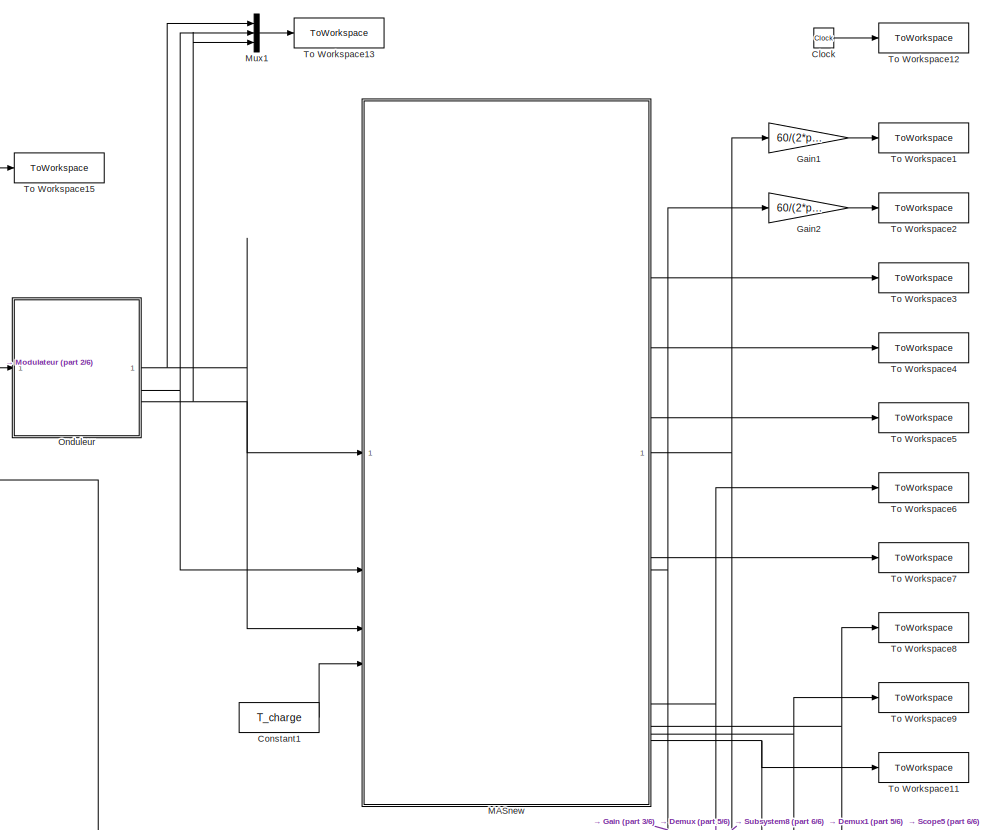
[diagram: root canvas - part 1/6, top right region]
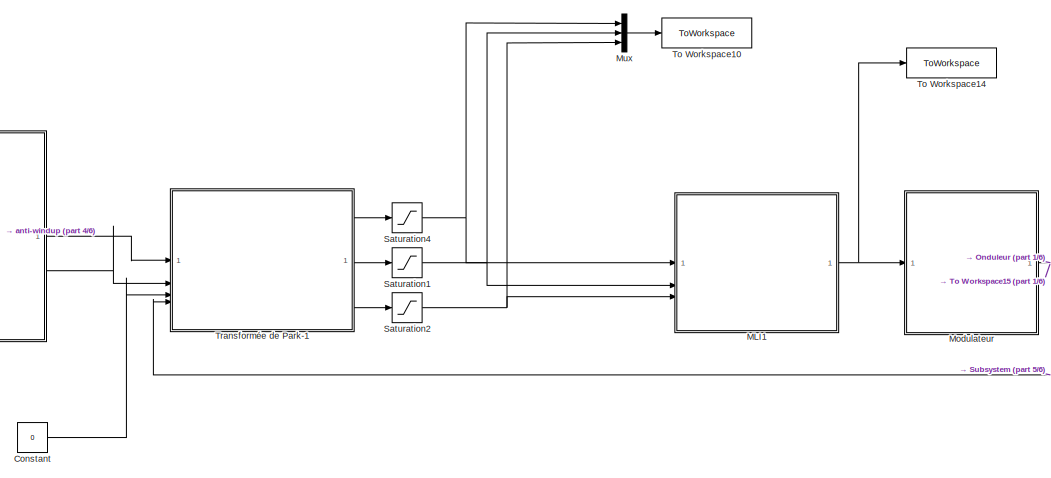
[diagram: root canvas - part 2/6, top center region]
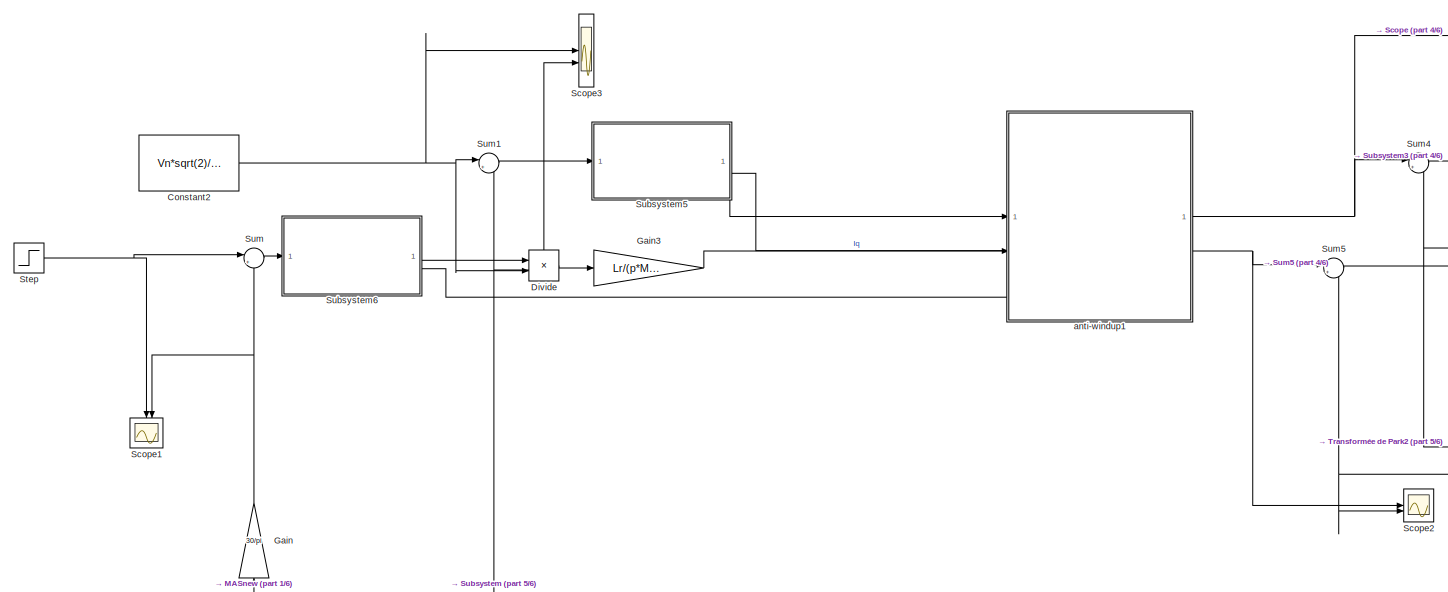
[diagram: root canvas - part 3/6, top left region]
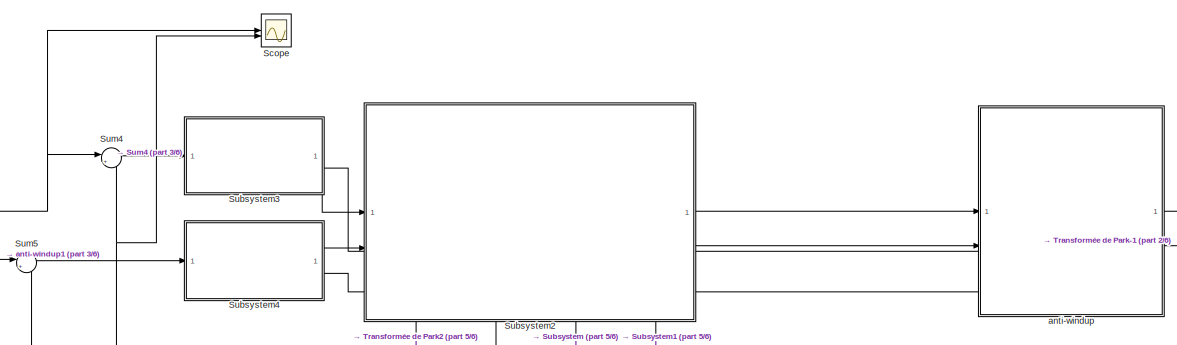
[diagram: root canvas - part 4/6, top center region]
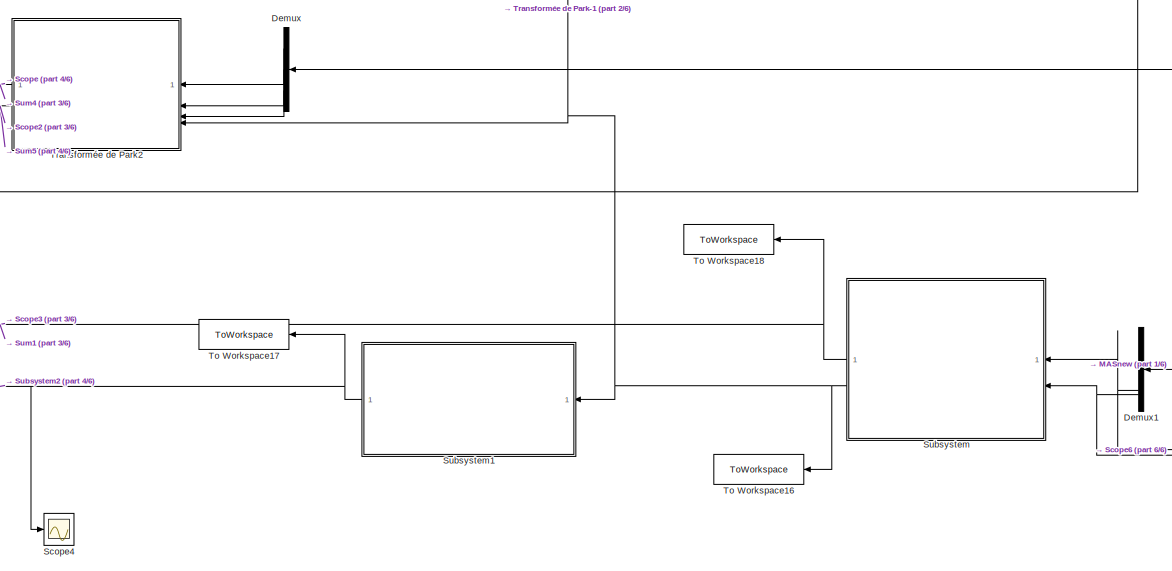
[diagram: root canvas - part 5/6, bottom right region]
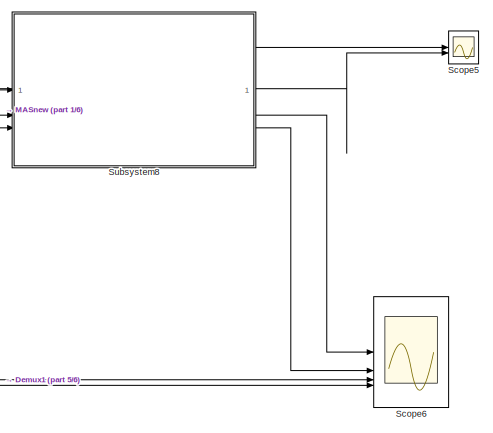
[diagram: root canvas - part 6/6, bottom right region]
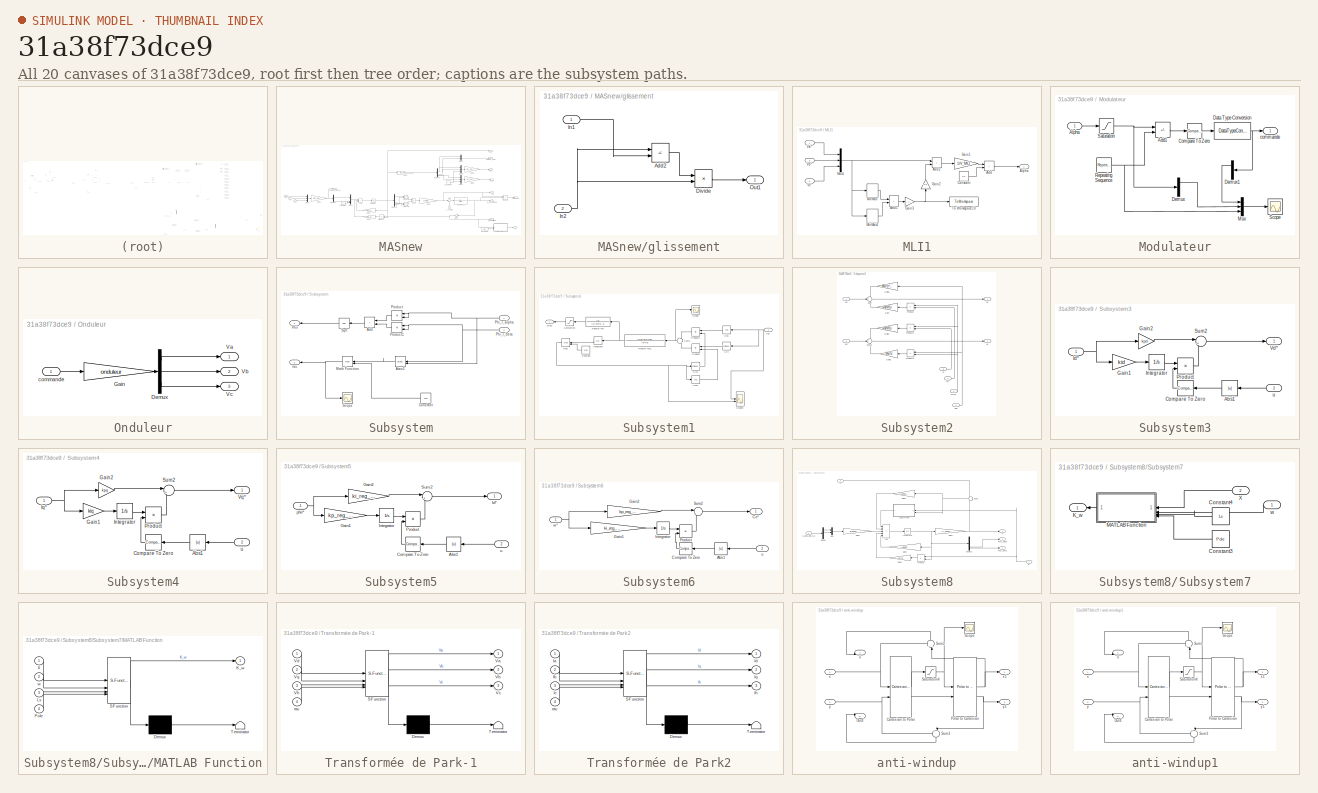
[diagram: thumbnail index - all 20 canvases of the model, root first then tree order]
MODEL slx_31a38f73dce9
KIND model
CONFIG AbsTol = auto
CONFIG EnableMultiTasking = off
CONFIG FixedStep = 1e-5
CONFIG MaxStep = auto
CONFIG MinStep = auto
CONFIG RelTol = 1e-5
CONFIG SampleTimeConstraint = Unconstrained
CONFIG SolverName = ode4
CONFIG StartTime = 0.0
CONFIG StopTime = 0.5
BLOCK [Clock] Clock
BLOCK [Constant] Constant
  Value = 0
BLOCK [Constant] Constant1
  Value = T_charge
BLOCK [Constant] Constant2
  Value = Vn*sqrt(2)/ws
BLOCK [Demux] Demux
  NameLocation = top
  Outputs = 3
BLOCK [Demux] Demux1
  NameLocation = top
BLOCK [Product] Divide
  Inputs = */
BLOCK [Gain] Gain
  Gain = 30/pi
  NameLocation = right
BLOCK [Gain] Gain1
  Gain = 60/(2*pi)
BLOCK [Gain] Gain2
  Gain = 60/(2*pi)
BLOCK [Gain] Gain3
  Gain = Lr/(p*Msr)
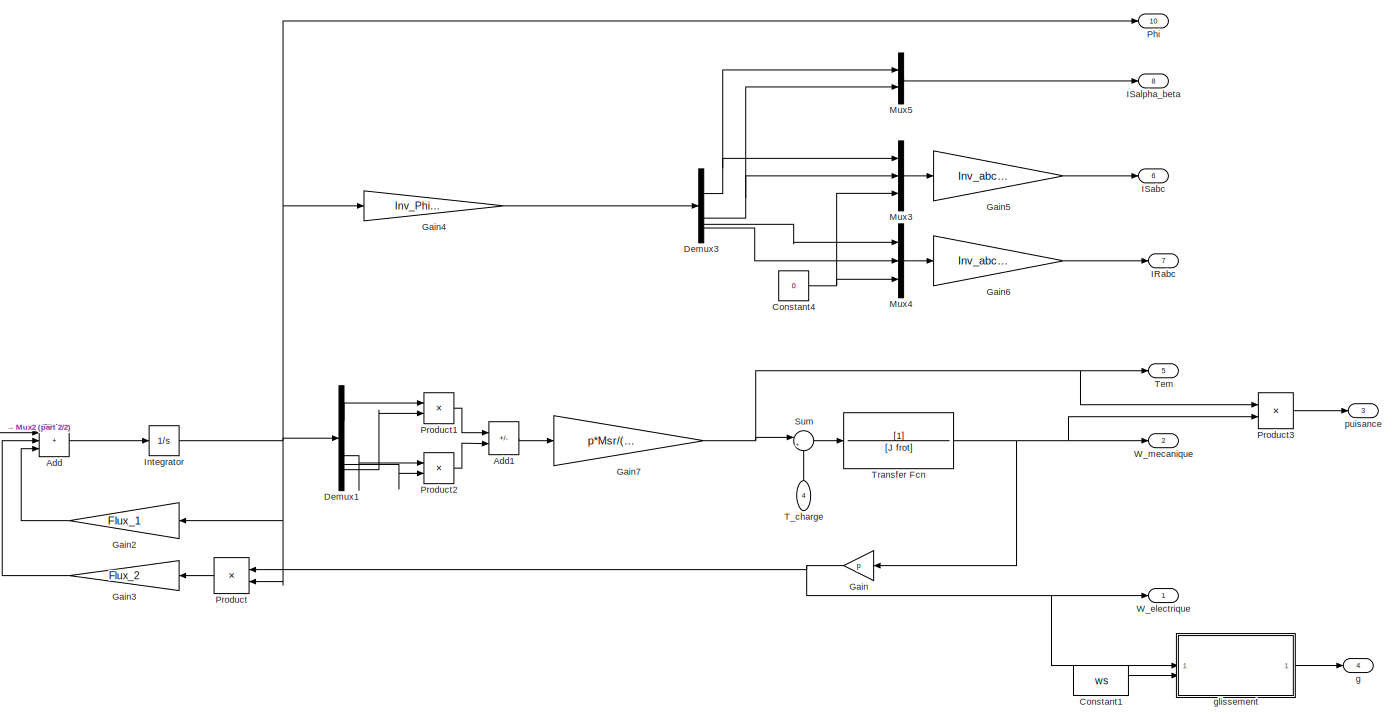
[diagram: MASnew - part 1/2, center side, full height]
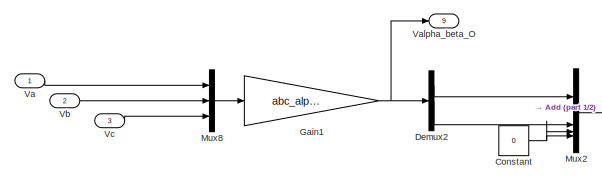
[diagram: MASnew - part 2/2, middle left region]
BLOCK [SubSystem] MASnew
BLOCK [Sum] MASnew/Add
  IconShape = rectangular
  Inputs = +++
BLOCK [Sum] MASnew/Add1
  IconShape = rectangular
  Inputs = +-
BLOCK [Constant] MASnew/Constant
  Value = 0
BLOCK [Constant] MASnew/Constant1
  Value = ws
BLOCK [Constant] MASnew/Constant4
  Value = 0
BLOCK [Demux] MASnew/Demux1
BLOCK [Demux] MASnew/Demux2
  Outputs = 3
BLOCK [Demux] MASnew/Demux3
BLOCK [Gain] MASnew/Gain
  Gain = p
  NameLocation = top
BLOCK [Gain] MASnew/Gain1
  Gain = abc_alpha_beta
  Multiplication = Matrix(K*u)
BLOCK [Gain] MASnew/Gain2
  Gain = Flux_1
  Multiplication = Matrix(K*u)
  NameLocation = top
BLOCK [Gain] MASnew/Gain3
  Gain = Flux_2
  Multiplication = Matrix(K*u)
  NameLocation = top
BLOCK [Gain] MASnew/Gain4
  Gain = Inv_Phi_Courant
  Multiplication = Matrix(K*u)
BLOCK [Gain] MASnew/Gain5
  Gain = Inv_abc_alpha_beta
  Multiplication = Matrix(K*u)
BLOCK [Gain] MASnew/Gain6
  Gain = Inv_abc_alpha_beta
  Multiplication = Matrix(K*u)
BLOCK [Gain] MASnew/Gain7
  Gain = p*Msr/(Msr^2 - Lr*Ls)
BLOCK [Outport] MASnew/IRabc
  Port = 7
BLOCK [Outport] MASnew/ISabc
  Port = 6
BLOCK [Outport] MASnew/ISalpha_beta
  Port = 8
BLOCK [Integrator] MASnew/Integrator
BLOCK [Mux] MASnew/Mux2
  DisplayOption = bar
BLOCK [Mux] MASnew/Mux3
  DisplayOption = bar
  Inputs = 3
BLOCK [Mux] MASnew/Mux4
  DisplayOption = bar
  Inputs = 3
BLOCK [Mux] MASnew/Mux5
  DisplayOption = bar
  Inputs = 2
BLOCK [Mux] MASnew/Mux8
  DisplayOption = bar
  Inputs = 3
BLOCK [Outport] MASnew/Phi
  Port = 10
BLOCK [Product] MASnew/Product
  NameLocation = top
BLOCK [Product] MASnew/Product1
BLOCK [Product] MASnew/Product2
BLOCK [Product] MASnew/Product3
BLOCK [Sum] MASnew/Sum
  Inputs = |+-
BLOCK [Inport] MASnew/T_charge
  NameLocation = right
  Port = 4
BLOCK [Outport] MASnew/Tem
  Port = 5
BLOCK [TransferFcn] MASnew/Transfer Fcn
  Denominator = [J frot]
BLOCK [Inport] MASnew/Va
BLOCK [Outport] MASnew/Valpha_beta_O
  Port = 9
BLOCK [Inport] MASnew/Vb
  Port = 2
BLOCK [Inport] MASnew/Vc
  Port = 3
BLOCK [Outport] MASnew/W_electrique
BLOCK [Outport] MASnew/W_mecanique
  Port = 2
BLOCK [Outport] MASnew/g
  Port = 4
BLOCK [SubSystem] MASnew/glissement
BLOCK [Sum] MASnew/glissement/Add2
  IconShape = rectangular
  Inputs = +-
BLOCK [Product] MASnew/glissement/Divide
  Inputs = */
BLOCK [Inport] MASnew/glissement/In1
BLOCK [Inport] MASnew/glissement/In2
  Port = 2
BLOCK [Outport] MASnew/glissement/Out1
BLOCK [Outport] MASnew/puisance
  Port = 3
BLOCK [SubSystem] MLI1
BLOCK [Sum] MLI1/Add
  IconShape = rectangular
BLOCK [Sum] MLI1/Add1
  IconShape = rectangular
BLOCK [Sum] MLI1/Add2
  IconShape = rectangular
BLOCK [Outport] MLI1/Alpha
BLOCK [Constant] MLI1/Constant
  Value = 1/2
BLOCK [Gain] MLI1/Gain1
  Gain = 1/V_MLI
BLOCK [Gain] MLI1/Gain2
  Gain = 1/2
  NameLocation = right
BLOCK [Gain] MLI1/Gain3
  Gain = -1
BLOCK [MinMax] MLI1/MinMax
BLOCK [MinMax] MLI1/MinMax1
  Function = max
BLOCK [Mux] MLI1/Mux1
  DisplayOption = bar
  Inputs = 3
BLOCK [ToWorkspace] MLI1/To Workspace10
  FixptAsFi = on
  MaxDataPoints = inf
  SampleTime = -1
  SaveFormat = Timeseries
  VariableName = consigne_triangle_MLI
BLOCK [Inport] MLI1/Va*
BLOCK [Inport] MLI1/Vb*
  Port = 2
BLOCK [Inport] MLI1/Vc*
  Port = 3
BLOCK [SubSystem] Modulateur
BLOCK [Sum] Modulateur/Add1
  IconShape = rectangular
  Inputs = +-
BLOCK [Inport] Modulateur/Alpha
BLOCK [Reference] Modulateur/Compare To Zero  REF=hdlsllib/Logic and Bit
Operations/Compare
To Zero
  SourceBlock = hdlsllib/Logic and Bit\nOperations/Compare\nTo Zero
  SourceType = Compare To Zero
BLOCK [DataTypeConversion] Modulateur/Data Type Conversion
  RndMeth = Floor
  SaturateOnIntegerOverflow = off
BLOCK [Demux] Modulateur/Demux
  Outputs = 3
BLOCK [Demux] Modulateur/Demux1
  NameLocation = top
  Outputs = 3
BLOCK [Mux] Modulateur/Mux
  DisplayOption = bar
  Inputs = 3
BLOCK [Reference] Modulateur/Repeating Sequence  REF=simulink/Sources/Repeating
Sequence
  SourceBlock = simulink/Sources/Repeating\nSequence
  SourceType = Repeating table
BLOCK [Saturate] Modulateur/Saturation
  LowerLimit = 0
  UpperLimit = 1
BLOCK [Scope] Modulateur/Scope
  Floating = off
  NumInputPorts = 1
  ScopeSpecificationString = Simulink.scopes.TimeScopeBlockCfg('CurrentConfiguration', extmgr.ConfigurationSet(extmgr.Configuration('Core','General UI',true),extmgr.Configuration('Core','Source UI',true),extmgr.Configuration('Sources','WiredSimulink',true,'DataLoggingVariableName','ScopeData1'),extmgr.Configuration('Visuals','Time Domain',true,'SerializedDisplays',{struct('MinYLimReal','-0.125','MaxYLimReal','1.125','YLabelRe...<+1432ch>
BLOCK [Outport] Modulateur/commande
BLOCK [Mux] Mux
  DisplayOption = bar
  Inputs = 3
BLOCK [Mux] Mux1
  DisplayOption = bar
  Inputs = 3
BLOCK [SubSystem] Onduleur
BLOCK [Demux] Onduleur/Demux
  Outputs = 3
BLOCK [Gain] Onduleur/Gain
  Gain = onduleur
  Multiplication = Matrix(K*u)
BLOCK [Outport] Onduleur/Va
BLOCK [Outport] Onduleur/Vb
  Port = 2
BLOCK [Outport] Onduleur/Vc
  Port = 3
BLOCK [Inport] Onduleur/commande
BLOCK [Saturate] Saturation1
  LowerLimit = -Vn*sqrt(2)
  UpperLimit = Vn*sqrt(2)
BLOCK [Saturate] Saturation2
  LowerLimit = -Vn*sqrt(2)
  UpperLimit = Vn*sqrt(2)
BLOCK [Saturate] Saturation4
  LowerLimit = -Vn*sqrt(2)
  UpperLimit = Vn*sqrt(2)
BLOCK [Scope] Scope
  Floating = off
  NumInputPorts = 2
  ScopeSpecificationString = Simulink.scopes.TimeScopeBlockCfg('CurrentConfiguration', extmgr.ConfigurationSet(extmgr.Configuration('Core','General UI',true),extmgr.Configuration('Core','Source UI',true),extmgr.Configuration('Sources','WiredSimulink',true,'DataLoggingVariableName','ScopeData1'),extmgr.Configuration('Visuals','Time Domain',true,'SerializedDisplays',{struct('MinYLimReal','-20.92303','MaxYLimReal','22.30725','YL...<+1590ch>
BLOCK [Scope] Scope1
  Floating = off
  NameLocation = left
  NumInputPorts = 2
  ScopeSpecificationString = Simulink.scopes.TimeScopeBlockCfg('CurrentConfiguration', extmgr.ConfigurationSet(extmgr.Configuration('Core','General UI',true),extmgr.Configuration('Core','Source UI',true),extmgr.Configuration('Sources','WiredSimulink',true,'DataLoggingVariableName','ScopeData4'),extmgr.Configuration('Visuals','Time Domain',true,'SerializedDisplays',{struct('MinYLimReal','-76.00159','MaxYLimReal','684.0143','YL...<+1563ch>
BLOCK [Scope] Scope2
  Floating = off
  NumInputPorts = 2
  ScopeSpecificationString = Simulink.scopes.TimeScopeBlockCfg('CurrentConfiguration', extmgr.ConfigurationSet(extmgr.Configuration('Core','General UI',true),extmgr.Configuration('Core','Source UI',true),extmgr.Configuration('Sources','WiredSimulink',true,'DataLoggingVariableName','ScopeData2'),extmgr.Configuration('Visuals','Time Domain',true,'SerializedDisplays',{struct('MinYLimReal','-1.44073','MaxYLimReal','12.96654','YLa...<+1588ch>
BLOCK [Scope] Scope3
  Floating = off
  NumInputPorts = 2
  ScopeSpecificationString = Simulink.scopes.TimeScopeBlockCfg('CurrentConfiguration', extmgr.ConfigurationSet(extmgr.Configuration('Core','General UI',true,'FigureColor',[1 1 1]),extmgr.Configuration('Core','Source UI',true),extmgr.Configuration('Sources','WiredSimulink',true,'DataLoggingVariableName','ScopeData1'),extmgr.Configuration('Visuals','Time Domain',true,'SerializedDisplays',{struct('MinYLimReal','-0.12391','MaxYLi...<+1699ch>
BLOCK [Scope] Scope4
  Floating = off
  NumInputPorts = 1
  ScopeSpecificationString = Simulink.scopes.TimeScopeBlockCfg('CurrentConfiguration', extmgr.ConfigurationSet(extmgr.Configuration('Core','General UI',true),extmgr.Configuration('Core','Source UI',true),extmgr.Configuration('Sources','WiredSimulink',true,'DataLoggingVariableName','ScopeData3'),extmgr.Configuration('Visuals','Time Domain',true,'SerializedDisplays',{struct('MinYLimReal','-1.00000','MaxYLimReal','1.00000','YLab...<+1396ch>
BLOCK [Scope] Scope5
  Floating = off
  NumInputPorts = 2
  ScopeSpecificationString = Simulink.scopes.TimeScopeBlockCfg('CurrentConfiguration', extmgr.ConfigurationSet(extmgr.Configuration('Core','General UI',true),extmgr.Configuration('Core','Source UI',true),extmgr.Configuration('Sources','WiredSimulink',true,'DataLoggingVariableName','ScopeData1'),extmgr.Configuration('Visuals','Time Domain',true,'SerializedDisplays',{struct('MinYLimReal','-1.68559','MaxYLimReal','15.17035','YLa...<+1577ch>
BLOCK [Scope] Scope6
  Floating = off
  NumInputPorts = 4
  ScopeSpecificationString = Simulink.scopes.TimeScopeBlockCfg('CurrentConfiguration', extmgr.ConfigurationSet(extmgr.Configuration('Core','General UI',true),extmgr.Configuration('Core','Source UI',true),extmgr.Configuration('Sources','WiredSimulink',true,'DataLoggingVariableName','ScopeData1'),extmgr.Configuration('Visuals','Time Domain',true,'SerializedDisplays',{struct('MinYLimReal','-1.23883','MaxYLimReal','1.23885','YLab...<+1565ch>
BLOCK [Step] Step
  After = 600
  SampleTime = 0
  Time = 0.1
BLOCK [SubSystem] Subsystem
  NameLocation = top
BLOCK [Sum] Subsystem/Add
  IconShape = rectangular
  NameLocation = top
BLOCK [Trigonometry] Subsystem/Atan2
  NameLocation = top
  Operator = atan2
BLOCK [Constant] Subsystem/Constant
  NameLocation = top
  Value = 2*pi
BLOCK [Math] Subsystem/Math Function
  NameLocation = top
  Operator = mod
BLOCK [Inport] Subsystem/Phi_r_alpha
BLOCK [Inport] Subsystem/Phi_r_beta
  Port = 2
BLOCK [Outport] Subsystem/Phir
  NameLocation = top
BLOCK [Product] Subsystem/Product
  NameLocation = top
BLOCK [Product] Subsystem/Product1
  NameLocation = top
BLOCK [Scope] Subsystem/Scope
  Floating = off
  NumInputPorts = 1
  ScopeSpecificationString = Simulink.scopes.TimeScopeBlockCfg('CurrentConfiguration', extmgr.ConfigurationSet(extmgr.Configuration('Core','General UI',true),extmgr.Configuration('Core','Source UI',true),extmgr.Configuration('Sources','WiredSimulink',true,'DataLoggingVariableName','ScopeData1'),extmgr.Configuration('Visuals','Time Domain',true,'SerializedDisplays',{struct('MinYLimReal','-0.78539','MaxYLimReal','7.06855','YLab...<+1399ch>
BLOCK [Sqrt] Subsystem/Sqrt
  NameLocation = top
BLOCK [Outport] Subsystem/rau
  NameLocation = top
  Port = 2
BLOCK [SubSystem] Subsystem1
  NameLocation = top
BLOCK [Constant] Subsystem1/Constant
  NameLocation = top
  Value = 2*pi
BLOCK [Trigonometry] Subsystem1/Cos
  NameLocation = top
  Operator = cos
BLOCK [Trigonometry] Subsystem1/Cos1
  Operator = cos
BLOCK [Integrator] Subsystem1/Integrator
  NameLocation = top
BLOCK [Math] Subsystem1/Mod
  NameLocation = top
  Operator = mod
BLOCK [Product] Subsystem1/Product
  NameLocation = top
BLOCK [Product] Subsystem1/Product1
  NameLocation = top
BLOCK [Saturate] Subsystem1/Saturation
  LowerLimit = -2*ws
  NameLocation = top
  UpperLimit = 2*ws
BLOCK [Scope] Subsystem1/Scope
  Floating = off
  NumInputPorts = 1
  ScopeSpecificationString = Simulink.scopes.TimeScopeBlockCfg('CurrentConfiguration', extmgr.ConfigurationSet(extmgr.Configuration('Core','General UI',true),extmgr.Configuration('Core','Source UI',true),extmgr.Configuration('Sources','WiredSimulink',true,'DataLoggingVariableName','ScopeData3'),extmgr.Configuration('Visuals','Time Domain',true,'SerializedDisplays',{struct('MinYLimReal','-1.18401','MaxYLimReal','0.65612','YLab...<+1411ch>
BLOCK [Scope] Subsystem1/Scope1
  Floating = off
  NumInputPorts = 2
  ScopeSpecificationString = Simulink.scopes.TimeScopeBlockCfg('CurrentConfiguration', extmgr.ConfigurationSet(extmgr.Configuration('Core','General UI',true),extmgr.Configuration('Core','Source UI',true),extmgr.Configuration('Sources','WiredSimulink',true,'DataLoggingVariableName','ScopeData2'),extmgr.Configuration('Visuals','Time Domain',true,'SerializedDisplays',{struct('MinYLimReal','-1.00000','MaxYLimReal','1.00000','YLab...<+1438ch>
BLOCK [Trigonometry] Subsystem1/Sin
  NameLocation = top
BLOCK [Trigonometry] Subsystem1/Sin1
BLOCK [Sum] Subsystem1/Sum1
  Inputs = -|+
  NameLocation = top
BLOCK [TransferFcn] Subsystem1/Transfer Fcn
  Denominator = [1/(3*ws) 1]
  NameLocation = top
BLOCK [TransferFcn] Subsystem1/Transfer Fcn1
  Denominator = [Tin 0]
  NameLocation = top
  Numerator = [Kpi*Tin Kpi]
BLOCK [Outport] Subsystem1/Wrau
  NameLocation = top
BLOCK [Inport] Subsystem1/rau
BLOCK [SubSystem] Subsystem2
  PortSchema = {"entries":[{"content":{"sides":[{"content":{"connectorIds":["In1","In2"]},"type":"ConnectorPlacement.EquallySpacedRectSide","uuid":"374a3029-9c19-44eb-9b98-de55e62c7022"},{"content":{"connectorIds":["Out1","Out2"],"side":"RIGHT"},"type":"ConnectorPlacement.EquallySpacedRectSide","uuid":"b066ba17-ce68-41f6-a300-7d3bc4dc3f92"},{"content":{"side":"TOP"},"type":"ConnectorPlacement.EquallySpacedRectSi...<+402ch>
BLOCK [Gain] Subsystem2/Gain
  Gain = sigma*Ls
  NameLocation = top
BLOCK [Gain] Subsystem2/Gain1
  Gain = sigma*Ls
  NameLocation = top
BLOCK [Gain] Subsystem2/Gain2
  Gain = Msr/Lr
  NameLocation = top
BLOCK [Gain] Subsystem2/Gain5
  Gain = Msr/Lr^2*Rr
  NameLocation = top
BLOCK [Inport] Subsystem2/Id
  Port = 3
BLOCK [Inport] Subsystem2/Iq
  Port = 4
BLOCK [Inport] Subsystem2/Phir
  Port = 5
BLOCK [Product] Subsystem2/Product
  NameLocation = top
BLOCK [Product] Subsystem2/Product1
  NameLocation = top
BLOCK [Product] Subsystem2/Product2
  NameLocation = top
BLOCK [Sum] Subsystem2/Sum
  Inputs = +++
BLOCK [Sum] Subsystem2/Sum2
  Inputs = -+-
BLOCK [Outport] Subsystem2/Vd
BLOCK [Inport] Subsystem2/Vd*
BLOCK [Outport] Subsystem2/Vq
  Port = 2
BLOCK [Inport] Subsystem2/Vq*
  Port = 2
BLOCK [Inport] Subsystem2/Wrau
  NameLocation = top
  Port = 6
BLOCK [SubSystem] Subsystem3
  PortSchema = {"entries":[{"content":{"sides":[{"content":{"connectorIds":["In1"]},"type":"ConnectorPlacement.EquallySpacedRectSide","uuid":"e479fa30-fafe-4b33-9f29-bcdfd025492c"},{"content":{"connectorIds":["Out1"],"side":"RIGHT"},"type":"ConnectorPlacement.EquallySpacedRectSide","uuid":"004bb801-1125-495b-9383-1b89d3712869"},{"content":{"connectorIds":["In2"],"side":"TOP"},"type":"ConnectorPlacement.EquallySp...<+245ch>
BLOCK [Abs] Subsystem3/Abs1
  NameLocation = top
  SaturateOnIntegerOverflow = off
BLOCK [Reference] Subsystem3/Compare To Zero  REF=hdlsllib/Logic and Bit
Operations/Compare
To Zero
  NameLocation = top
  SourceBlock = hdlsllib/Logic and Bit\nOperations/Compare\nTo Zero
  SourceType = Compare To Zero
BLOCK [Gain] Subsystem3/Gain1
  Gain = kid
BLOCK [Gain] Subsystem3/Gain2
  Gain = kpd
BLOCK [Inport] Subsystem3/Id*
BLOCK [Integrator] Subsystem3/Integrator
BLOCK [Product] Subsystem3/Product
BLOCK [Sum] Subsystem3/Sum2
  Inputs = |++
BLOCK [Outport] Subsystem3/Vd*
BLOCK [Inport] Subsystem3/u
  NameLocation = top
  Port = 2
BLOCK [SubSystem] Subsystem4
  PortSchema = {"entries":[{"content":{"sides":[{"content":{"connectorIds":["In1"]},"type":"ConnectorPlacement.EquallySpacedRectSide","uuid":"b47c6917-9341-4daa-88c1-000b41eb9d38"},{"content":{"connectorIds":["Out1"],"side":"RIGHT"},"type":"ConnectorPlacement.EquallySpacedRectSide","uuid":"db977880-8c33-40fc-933d-e73e745919fc"},{"content":{"side":"TOP"},"type":"ConnectorPlacement.EquallySpacedRectSide","uuid":"c...<+371ch>
BLOCK [Abs] Subsystem4/Abs1
  NameLocation = top
  SaturateOnIntegerOverflow = off
BLOCK [Reference] Subsystem4/Compare To Zero  REF=hdlsllib/Logic and Bit
Operations/Compare
To Zero
  NameLocation = top
  SourceBlock = hdlsllib/Logic and Bit\nOperations/Compare\nTo Zero
  SourceType = Compare To Zero
BLOCK [Gain] Subsystem4/Gain1
  Gain = kiq
BLOCK [Gain] Subsystem4/Gain2
  Gain = kpq
BLOCK [Integrator] Subsystem4/Integrator
BLOCK [Inport] Subsystem4/Iq*
BLOCK [Product] Subsystem4/Product
BLOCK [Sum] Subsystem4/Sum2
  Inputs = |++
BLOCK [Outport] Subsystem4/Vq*
BLOCK [Inport] Subsystem4/u
  NameLocation = top
  Port = 2
BLOCK [SubSystem] Subsystem5
  PortSchema = {"entries":[{"content":{"sides":[{"content":{"connectorIds":["In1"]},"type":"ConnectorPlacement.EquallySpacedRectSide","uuid":"b47c6917-9341-4daa-88c1-000b41eb9d38"},{"content":{"connectorIds":["Out1"],"side":"RIGHT"},"type":"ConnectorPlacement.EquallySpacedRectSide","uuid":"db977880-8c33-40fc-933d-e73e745919fc"},{"content":{"connectorIds":["In2"],"side":"TOP"},"type":"ConnectorPlacement.EquallySp...<+245ch>
BLOCK [Abs] Subsystem5/Abs1
  NameLocation = top
  SaturateOnIntegerOverflow = off
BLOCK [Reference] Subsystem5/Compare To Zero  REF=hdlsllib/Logic and Bit
Operations/Compare
To Zero
  NameLocation = top
  SourceBlock = hdlsllib/Logic and Bit\nOperations/Compare\nTo Zero
  SourceType = Compare To Zero
BLOCK [Gain] Subsystem5/Gain1
  Gain = kp_reg_flux
BLOCK [Gain] Subsystem5/Gain2
  Gain = ki_reg_flux
BLOCK [Outport] Subsystem5/Id*
BLOCK [Integrator] Subsystem5/Integrator
BLOCK [Product] Subsystem5/Product
BLOCK [Sum] Subsystem5/Sum2
  Inputs = |++
BLOCK [Inport] Subsystem5/phir*
BLOCK [Inport] Subsystem5/u
  NameLocation = top
  Port = 2
BLOCK [SubSystem] Subsystem6
  PortSchema = {"entries":[{"content":{"sides":[{"content":{"connectorIds":["In1"]},"type":"ConnectorPlacement.EquallySpacedRectSide","uuid":"b47c6917-9341-4daa-88c1-000b41eb9d38"},{"content":{"connectorIds":["Out1"],"side":"RIGHT"},"type":"ConnectorPlacement.EquallySpacedRectSide","uuid":"db977880-8c33-40fc-933d-e73e745919fc"},{"content":{"side":"TOP"},"type":"ConnectorPlacement.EquallySpacedRectSide","uuid":"c...<+371ch>
BLOCK [Abs] Subsystem6/Abs1
  NameLocation = top
  SaturateOnIntegerOverflow = off
BLOCK [Outport] Subsystem6/Ce*
BLOCK [Reference] Subsystem6/Compare To Zero  REF=hdlsllib/Logic and Bit
Operations/Compare
To Zero
  NameLocation = top
  SourceBlock = hdlsllib/Logic and Bit\nOperations/Compare\nTo Zero
  SourceType = Compare To Zero
BLOCK [Gain] Subsystem6/Gain1
  Gain = ki_reg_vitesse
BLOCK [Gain] Subsystem6/Gain2
  Gain = kp_reg_vitesse
BLOCK [Integrator] Subsystem6/Integrator
BLOCK [Product] Subsystem6/Product
BLOCK [Sum] Subsystem6/Sum2
  Inputs = |++
BLOCK [Inport] Subsystem6/u
  NameLocation = top
  Port = 2
BLOCK [Inport] Subsystem6/w*
BLOCK [SubSystem] Subsystem8
BLOCK [Sum] Subsystem8/Add
  IconShape = rectangular
  Inputs = +++++
BLOCK [Demux] Subsystem8/Demux
  Outputs = 3
BLOCK [Demux] Subsystem8/Demux1
BLOCK [Gain] Subsystem8/Gain1
  Gain = A_ob_w
  Multiplication = Matrix(K*u) (u vector)
  NameLocation = top
BLOCK [Gain] Subsystem8/Gain2
  Gain = A_observateur
  Multiplication = Matrix(K*u) (u vector)
  NameLocation = top
BLOCK [Gain] Subsystem8/Gain3
  Gain = B_observateur
  Multiplication = Matrix(K*u) (u vector)
BLOCK [Gain] Subsystem8/Gain4
  Gain = C_observateur
  Multiplication = Matrix(K*u) (u vector)
BLOCK [Gain] Subsystem8/Gain5
  Gain = K_observateur
  Multiplication = Matrix(K*u) (u vector)
  NameLocation = top
BLOCK [Integrator] Subsystem8/Integrator
BLOCK [Mux] Subsystem8/Mux
  DisplayOption = bar
  Inputs = 2
BLOCK [Outport] Subsystem8/Phi_r_alpha
  Port = 2
BLOCK [Outport] Subsystem8/Phi_r_beta
  Port = 3
BLOCK [Product] Subsystem8/Product
  NameLocation = top
BLOCK [SubSystem] Subsystem8/Subsystem7
  NameLocation = top
BLOCK [Constant] Subsystem8/Subsystem7/Constant3
  NameLocation = top
  Value = Pole
BLOCK [Constant] Subsystem8/Subsystem7/Constant4
  NameLocation = top
  Value = Ls
BLOCK [Outport] Subsystem8/Subsystem7/K_w
BLOCK [SubSystem] Subsystem8/Subsystem7/MATLAB Function
  ErrorFcn = Stateflow.Translate.translate
  LibrarySourceBlock = simulink/User-Defined\nFunctions/MATLAB Function
  NameLocation = top
  PermitHierarchicalResolution = ExplicitOnly
  SFBlockType = MATLAB Function
  TreatAsAtomicUnit = on
BLOCK [Demux] Subsystem8/Subsystem7/MATLAB Function/ Demux 
  Outputs = 1
BLOCK [S-Function] Subsystem8/Subsystem7/MATLAB Function/ SFunction 
  EnableBusSupport = on
  FunctionName = sf_sfun
  PortCounts = [4 2]
  SFcnIsStateOwnerBlock = off
  SFunctionDeploymentMode = off
  Tag = Stateflow S-Function 2
BLOCK [Terminator] Subsystem8/Subsystem7/MATLAB Function/ Terminator 
BLOCK [Outport] Subsystem8/Subsystem7/MATLAB Function/K_w
BLOCK [Inport] Subsystem8/Subsystem7/MATLAB Function/Ls
  Port = 3
BLOCK [Inport] Subsystem8/Subsystem7/MATLAB Function/Pole
  Port = 4
BLOCK [Inport] Subsystem8/Subsystem7/MATLAB Function/X
BLOCK [Inport] Subsystem8/Subsystem7/MATLAB Function/w
  Port = 2
BLOCK [Inport] Subsystem8/Subsystem7/X
  NameLocation = top
  Port = 2
BLOCK [Inport] Subsystem8/Subsystem7/w
  NameLocation = top
BLOCK [Sum] Subsystem8/Sum2
  Inputs = +|-
  NameLocation = top
BLOCK [Inport] Subsystem8/V_Alpha_Beta_O
BLOCK [Inport] Subsystem8/Y
  Port = 3
BLOCK [Outport] Subsystem8/Y*
BLOCK [Inport] Subsystem8/w
  NameLocation = top
  Port = 2
BLOCK [Sum] Sum
  Inputs = |+-
BLOCK [Sum] Sum1
  Inputs = |+-
BLOCK [Sum] Sum4
  Inputs = |+-
BLOCK [Sum] Sum5
  Inputs = |+-
BLOCK [ToWorkspace] To Workspace1
  FixptAsFi = on
  MaxDataPoints = inf
  SampleTime = -1
  SaveFormat = Timeseries
  VariableName = w_elec
BLOCK [ToWorkspace] To Workspace10
  FixptAsFi = on
  MaxDataPoints = inf
  SampleTime = -1
  SaveFormat = Timeseries
  VariableName = consigne
BLOCK [ToWorkspace] To Workspace11
  FixptAsFi = on
  MaxDataPoints = inf
  SampleTime = -1
  SaveFormat = Timeseries
  VariableName = Phi
BLOCK [ToWorkspace] To Workspace12
  FixptAsFi = on
  MaxDataPoints = inf
  SampleTime = -1
  SaveFormat = Timeseries
  VariableName = time
BLOCK [ToWorkspace] To Workspace13
  FixptAsFi = on
  MaxDataPoints = inf
  SampleTime = -1
  SaveFormat = Timeseries
  VariableName = consigne_MLI
BLOCK [ToWorkspace] To Workspace14
  FixptAsFi = on
  MaxDataPoints = inf
  SampleTime = -1
  SaveFormat = Timeseries
  VariableName = Alpha_MLI
BLOCK [ToWorkspace] To Workspace15
  FixptAsFi = on
  MaxDataPoints = inf
  SampleTime = -1
  SaveFormat = Timeseries
  VariableName = commande_Modulateur
BLOCK [ToWorkspace] To Workspace16
  FixptAsFi = on
  MaxDataPoints = inf
  NameLocation = top
  SampleTime = -1
  SaveFormat = Timeseries
  VariableName = rau_result
BLOCK [ToWorkspace] To Workspace17
  FixptAsFi = on
  MaxDataPoints = inf
  NameLocation = top
  SampleTime = -1
  SaveFormat = Timeseries
  VariableName = wrau_result
BLOCK [ToWorkspace] To Workspace18
  FixptAsFi = on
  MaxDataPoints = inf
  NameLocation = top
  SampleTime = -1
  SaveFormat = Timeseries
  VariableName = Phir_result
BLOCK [ToWorkspace] To Workspace2
  FixptAsFi = on
  MaxDataPoints = inf
  SampleTime = -1
  SaveFormat = Timeseries
  VariableName = w_mec
BLOCK [ToWorkspace] To Workspace3
  FixptAsFi = on
  MaxDataPoints = inf
  SampleTime = -1
  SaveFormat = Timeseries
  VariableName = Puis
BLOCK [ToWorkspace] To Workspace4
  FixptAsFi = on
  MaxDataPoints = inf
  SampleTime = -1
  SaveFormat = Timeseries
  VariableName = glis
BLOCK [ToWorkspace] To Workspace5
  FixptAsFi = on
  MaxDataPoints = inf
  SampleTime = -1
  SaveFormat = Timeseries
  VariableName = Tem
BLOCK [ToWorkspace] To Workspace6
  FixptAsFi = on
  MaxDataPoints = inf
  SampleTime = -1
  SaveFormat = Timeseries
  VariableName = ISabc
BLOCK [ToWorkspace] To Workspace7
  FixptAsFi = on
  MaxDataPoints = inf
  SampleTime = -1
  SaveFormat = Timeseries
  VariableName = IRabc
BLOCK [ToWorkspace] To Workspace8
  FixptAsFi = on
  MaxDataPoints = inf
  SampleTime = -1
  SaveFormat = Timeseries
  VariableName = ISAlpha_Beta
BLOCK [ToWorkspace] To Workspace9
  FixptAsFi = on
  MaxDataPoints = inf
  SampleTime = -1
  SaveFormat = Timeseries
  VariableName = VAlpha_Beta_O
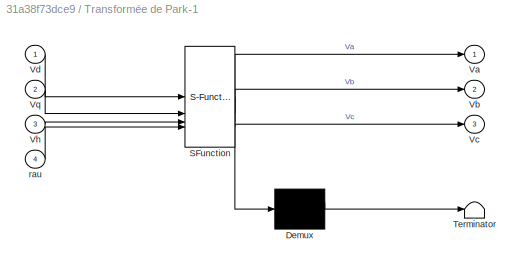
BLOCK [SubSystem] Transformée de Park-1
  ErrorFcn = Stateflow.Translate.translate
  PermitHierarchicalResolution = ExplicitOnly
  SFBlockType = MATLAB Function
  TreatAsAtomicUnit = on
BLOCK [Demux] Transformée de Park-1/ Demux 
  Outputs = 1
BLOCK [S-Function] Transformée de Park-1/ SFunction 
  EnableBusSupport = on
  FunctionName = sf_sfun
  PortCounts = [4 4]
  SFcnIsStateOwnerBlock = off
  SFunctionDeploymentMode = off
  Tag = Stateflow S-Function 1
BLOCK [Terminator] Transformée de Park-1/ Terminator 
BLOCK [Outport] Transformée de Park-1/Va
BLOCK [Outport] Transformée de Park-1/Vb
  Port = 2
BLOCK [Outport] Transformée de Park-1/Vc
  Port = 3
BLOCK [Inport] Transformée de Park-1/Vd
BLOCK [Inport] Transformée de Park-1/Vh
  Port = 3
BLOCK [Inport] Transformée de Park-1/Vq
  Port = 2
BLOCK [Inport] Transformée de Park-1/rau
  Port = 4
BLOCK [SubSystem] Transformée de Park2
  ErrorFcn = Stateflow.Translate.translate
  NameLocation = top
  PermitHierarchicalResolution = ExplicitOnly
  SFBlockType = MATLAB Function
  TreatAsAtomicUnit = on
BLOCK [Demux] Transformée de Park2/ Demux 
  Outputs = 1
BLOCK [S-Function] Transformée de Park2/ SFunction 
  EnableBusSupport = on
  FunctionName = sf_sfun
  PortCounts = [4 4]
  SFcnIsStateOwnerBlock = off
  SFunctionDeploymentMode = off
  Tag = Stateflow S-Function 3
BLOCK [Terminator] Transformée de Park2/ Terminator 
BLOCK [Inport] Transformée de Park2/Ia
BLOCK [Inport] Transformée de Park2/Ib
  Port = 2
BLOCK [Inport] Transformée de Park2/Ic
  Port = 3
BLOCK [Outport] Transformée de Park2/Id
BLOCK [Outport] Transformée de Park2/Ih
  Port = 3
BLOCK [Outport] Transformée de Park2/Iq
  Port = 2
BLOCK [Inport] Transformée de Park2/rau
  Port = 4
BLOCK [SubSystem] anti-windup
  PortSchema = {"entries":[{"content":{"sides":[{"content":{"connectorIds":["In1","In2"]},"type":"ConnectorPlacement.EquallySpacedRectSide","uuid":"233cb3cb-1249-40bd-bfdc-45fa9814c46e"},{"content":{"connectorIds":["Out1","Out2"],"side":"RIGHT"},"type":"ConnectorPlacement.EquallySpacedRectSide","uuid":"0fdc860d-9a1f-453b-acef-69f40f5c198e"},{"content":{"connectorIds":["Out4"],"side":"TOP"},"type":"ConnectorPlace...<+409ch>
BLOCK [Reference] anti-windup/Cartesian to Polar  REF=simulink_extras/Transformations/Cartesian to
Polar
  SourceBlock = simulink_extras/Transformations/Cartesian to\nPolar
  SourceType = Cart2Polar
BLOCK [Outport] anti-windup/Out4
  Port = 3
BLOCK [Reference] anti-windup/Polar to Cartesian  REF=simulink_extras/Transformations/Polar to
Cartesian
  SourceBlock = simulink_extras/Transformations/Polar to\nCartesian
  SourceType = Polar2Cart
BLOCK [Saturate] anti-windup/Saturation4
  LowerLimit = 0
  UpperLimit = V_MLI/sqrt(3)
BLOCK [Scope] anti-windup/Scope
  Floating = off
  NumInputPorts = 1
  ScopeSpecificationString = Simulink.scopes.TimeScopeBlockCfg('CurrentConfiguration', extmgr.ConfigurationSet(extmgr.Configuration('Core','General UI',true),extmgr.Configuration('Core','Source UI',true),extmgr.Configuration('Sources','WiredSimulink',true,'DataLoggingVariableName','ScopeData3'),extmgr.Configuration('Visuals','Time Domain',true,'SerializedDisplays',{struct('MinYLimReal','-27.7365','MaxYLimReal','349.49199','YL...<+1405ch>
BLOCK [Sum] anti-windup/Sum2
  Inputs = +|-
  NameLocation = right
BLOCK [Sum] anti-windup/Sum3
  Inputs = +|-
  NameLocation = left
BLOCK [Outport] anti-windup/u
  Port = 4
BLOCK [Inport] anti-windup/x
BLOCK [Outport] anti-windup/x1
BLOCK [Inport] anti-windup/y
  Port = 2
BLOCK [Outport] anti-windup/y1
  Port = 2
BLOCK [SubSystem] anti-windup1
  PortSchema = {"entries":[{"content":{"sides":[{"content":{"connectorIds":["In1","In2"]},"type":"ConnectorPlacement.EquallySpacedRectSide","uuid":"233cb3cb-1249-40bd-bfdc-45fa9814c46e"},{"content":{"connectorIds":["Out1","Out2"],"side":"RIGHT"},"type":"ConnectorPlacement.EquallySpacedRectSide","uuid":"0fdc860d-9a1f-453b-acef-69f40f5c198e"},{"content":{"connectorIds":["Out4"],"side":"TOP"},"type":"ConnectorPlace...<+409ch>
BLOCK [Reference] anti-windup1/Cartesian to Polar  REF=simulink_extras/Transformations/Cartesian to
Polar
  SourceBlock = simulink_extras/Transformations/Cartesian to\nPolar
  SourceType = Cart2Polar
BLOCK [Outport] anti-windup1/Out4
  Port = 3
BLOCK [Reference] anti-windup1/Polar to Cartesian  REF=simulink_extras/Transformations/Polar to
Cartesian
  SourceBlock = simulink_extras/Transformations/Polar to\nCartesian
  SourceType = Polar2Cart
BLOCK [Saturate] anti-windup1/Saturation4
  LowerLimit = 0
  UpperLimit = 1.5*In
BLOCK [Scope] anti-windup1/Scope
  Floating = off
  NumInputPorts = 1
  ScopeSpecificationString = Simulink.scopes.TimeScopeBlockCfg('CurrentConfiguration', extmgr.ConfigurationSet(extmgr.Configuration('Core','General UI',true),extmgr.Configuration('Core','Source UI',true),extmgr.Configuration('Sources','WiredSimulink',true,'DataLoggingVariableName','ScopeData3'),extmgr.Configuration('Visuals','Time Domain',true,'SerializedDisplays',{struct('MinYLimReal','-0.28719','MaxYLimReal','18.47635','YLa...<+1403ch>
BLOCK [Sum] anti-windup1/Sum2
  Inputs = +|-
  NameLocation = right
BLOCK [Sum] anti-windup1/Sum3
  Inputs = +|-
  NameLocation = left
BLOCK [Outport] anti-windup1/u
  Port = 4
BLOCK [Inport] anti-windup1/x
BLOCK [Outport] anti-windup1/x1
BLOCK [Inport] anti-windup1/y
  Port = 2
BLOCK [Outport] anti-windup1/y1
  Port = 2
LINE Clock:1 -> To Workspace12:1
LINE Constant1:1 -> MASnew:4
NET Constant2:1 -> Divide:2, Scope3:1, Sum1:1
LINE Constant:1 -> Transformée de Park-1:3
NET Demux1:3 -> Scope6:3, Subsystem:1
NET Demux1:4 -> Scope6:4, Subsystem:2
LINE Demux:1 -> Transformée de Park2:1
LINE Demux:2 -> Transformée de Park2:2
LINE Demux:3 -> Transformée de Park2:3
LINE Divide:1 -> Gain3:1
LINE Gain1:1 -> To Workspace1:1
LINE Gain2:1 -> To Workspace2:1
LINE Gain3:1 -> anti-windup1:2
NET Gain:1 -> Scope1:2, Sum:2
LINE MASnew/Add1:1 -> MASnew/Gain7:1
LINE MASnew/Add:1 -> MASnew/Integrator:1
LINE MASnew/Constant1:1 -> MASnew/glissement:2
NET MASnew/Constant4:1 -> MASnew/Mux3:3, MASnew/Mux4:3
NET MASnew/Constant:1 -> MASnew/Mux2:3, MASnew/Mux2:4
LINE MASnew/Demux1:1 -> MASnew/Product1:1
LINE MASnew/Demux1:2 -> MASnew/Product2:1
LINE MASnew/Demux1:3 -> MASnew/Product2:2
LINE MASnew/Demux1:4 -> MASnew/Product1:2
LINE MASnew/Demux2:1 -> MASnew/Mux2:1
LINE MASnew/Demux2:2 -> MASnew/Mux2:2
NET MASnew/Demux3:1 -> MASnew/Mux3:1, MASnew/Mux5:1
NET MASnew/Demux3:2 -> MASnew/Mux3:2, MASnew/Mux5:2
LINE MASnew/Demux3:3 -> MASnew/Mux4:1
LINE MASnew/Demux3:4 -> MASnew/Mux4:2
NET MASnew/Gain1:1 -> MASnew/Demux2:1, MASnew/Valpha_beta_O:1
LINE MASnew/Gain2:1 -> MASnew/Add:3
LINE MASnew/Gain3:1 -> MASnew/Add:2
LINE MASnew/Gain4:1 -> MASnew/Demux3:1
LINE MASnew/Gain5:1 -> MASnew/ISabc:1
LINE MASnew/Gain6:1 -> MASnew/IRabc:1
NET MASnew/Gain7:1 -> MASnew/Product3:1, MASnew/Sum:1, MASnew/Tem:1
NET MASnew/Gain:1 -> MASnew/Product:1, MASnew/W_electrique:1, MASnew/glissement:1
NET MASnew/Integrator:1 -> MASnew/Demux1:1, MASnew/Gain2:1, MASnew/Gain4:1, MASnew/Phi:1, MASnew/Product:2
LINE MASnew/Mux2:1 -> MASnew/Add:1
LINE MASnew/Mux3:1 -> MASnew/Gain5:1
LINE MASnew/Mux4:1 -> MASnew/Gain6:1
LINE MASnew/Mux5:1 -> MASnew/ISalpha_beta:1
LINE MASnew/Mux8:1 -> MASnew/Gain1:1
LINE MASnew/Product1:1 -> MASnew/Add1:1
LINE MASnew/Product2:1 -> MASnew/Add1:2
LINE MASnew/Product3:1 -> MASnew/puisance:1
LINE MASnew/Product:1 -> MASnew/Gain3:1
LINE MASnew/Sum:1 -> MASnew/Transfer Fcn:1
LINE MASnew/T_charge:1 -> MASnew/Sum:2
NET MASnew/Transfer Fcn:1 -> MASnew/Gain:1, MASnew/Product3:2, MASnew/W_mecanique:1
LINE MASnew/Va:1 -> MASnew/Mux8:1
LINE MASnew/Vb:1 -> MASnew/Mux8:2
LINE MASnew/Vc:1 -> MASnew/Mux8:3
LINE MASnew/glissement/Add2:1 -> MASnew/glissement/Divide:1
LINE MASnew/glissement/Divide:1 -> MASnew/glissement/Out1:1
LINE MASnew/glissement/In1:1 -> MASnew/glissement/Add2:2
NET MASnew/glissement/In2:1 -> MASnew/glissement/Add2:1, MASnew/glissement/Divide:2
LINE MASnew/glissement:1 -> MASnew/g:1
NET MASnew:1 -> Gain1:1, Subsystem8:2
NET MASnew:10 -> Demux1:1, To Workspace11:1
NET MASnew:2 -> Gain2:1, Gain:1
LINE MASnew:3 -> To Workspace3:1
LINE MASnew:4 -> To Workspace4:1
LINE MASnew:5 -> To Workspace5:1
NET MASnew:6 -> Demux:1, To Workspace6:1
LINE MASnew:7 -> To Workspace7:1
NET MASnew:8 -> Scope5:2, Subsystem8:3, To Workspace8:1
NET MASnew:9 -> Subsystem8:1, To Workspace9:1
LINE MLI1/Add1:1 -> MLI1/Gain3:1
LINE MLI1/Add2:1 -> MLI1/Gain1:1
LINE MLI1/Add:1 -> MLI1/Alpha:1
LINE MLI1/Constant:1 -> MLI1/Add:2
LINE MLI1/Gain1:1 -> MLI1/Add:1
LINE MLI1/Gain2:1 -> MLI1/Add2:2
NET MLI1/Gain3:1 -> MLI1/Gain2:1, MLI1/To Workspace10:1
LINE MLI1/MinMax1:1 -> MLI1/Add1:2
LINE MLI1/MinMax:1 -> MLI1/Add1:1
NET MLI1/Mux1:1 -> MLI1/Add2:1, MLI1/MinMax1:1, MLI1/MinMax:1
LINE MLI1/Va*:1 -> MLI1/Mux1:1
LINE MLI1/Vb*:1 -> MLI1/Mux1:2
LINE MLI1/Vc*:1 -> MLI1/Mux1:3
NET MLI1:1 -> Modulateur:1, To Workspace14:1
LINE Modulateur/Add1:1 -> Modulateur/Compare To Zero:1
LINE Modulateur/Alpha:1 -> Modulateur/Saturation:1
LINE Modulateur/Compare To Zero:1 -> Modulateur/Data Type Conversion:1
NET Modulateur/Data Type Conversion:1 -> Modulateur/Demux1:1, Modulateur/commande:1
LINE Modulateur/Demux1:1 -> Modulateur/Mux:1
LINE Modulateur/Demux:1 -> Modulateur/Mux:2
LINE Modulateur/Mux:1 -> Modulateur/Scope:1
NET Modulateur/Repeating Sequence:1 -> Modulateur/Add1:2, Modulateur/Mux:3
NET Modulateur/Saturation:1 -> Modulateur/Add1:1, Modulateur/Demux:1
NET Modulateur:1 -> Onduleur:1, To Workspace15:1
LINE Mux1:1 -> To Workspace13:1
LINE Mux:1 -> To Workspace10:1
LINE Onduleur/Demux:1 -> Onduleur/Va:1
LINE Onduleur/Demux:2 -> Onduleur/Vb:1
LINE Onduleur/Demux:3 -> Onduleur/Vc:1
LINE Onduleur/Gain:1 -> Onduleur/Demux:1
LINE Onduleur/commande:1 -> Onduleur/Gain:1
NET Onduleur:1 -> MASnew:1, Mux1:1
NET Onduleur:2 -> MASnew:2, Mux1:2
NET Onduleur:3 -> MASnew:3, Mux1:3
NET Saturation1:1 -> MLI1:2, Mux:2
NET Saturation2:1 -> MLI1:3, Mux:3
NET Saturation4:1 -> MLI1:1, Mux:1
NET Step:1 -> Scope1:1, Sum:1
LINE Subsystem/Add:1 -> Subsystem/Sqrt:1
LINE Subsystem/Atan2:1 -> Subsystem/Math Function:1
LINE Subsystem/Constant:1 -> Subsystem/Math Function:2
NET Subsystem/Math Function:1 -> Subsystem/Scope:1, Subsystem/rau:1
NET Subsystem/Phi_r_alpha:1 -> Subsystem/Atan2:2, Subsystem/Product:1, Subsystem/Product:2
NET Subsystem/Phi_r_beta:1 -> Subsystem/Atan2:1, Subsystem/Product1:1, Subsystem/Product1:2
LINE Subsystem/Product1:1 -> Subsystem/Add:2
LINE Subsystem/Product:1 -> Subsystem/Add:1
LINE Subsystem/Sqrt:1 -> Subsystem/Phir:1
LINE Subsystem1/Constant:1 -> Subsystem1/Mod:2
LINE Subsystem1/Cos1:1 -> Subsystem1/Product:2
LINE Subsystem1/Cos:1 -> Subsystem1/Product1:1
LINE Subsystem1/Integrator:1 -> Subsystem1/Mod:1
NET Subsystem1/Mod:1 -> Subsystem1/Cos1:1, Subsystem1/Scope1:2, Subsystem1/Sin1:1
LINE Subsystem1/Product1:1 -> Subsystem1/Sum1:1
LINE Subsystem1/Product:1 -> Subsystem1/Sum1:2
LINE Subsystem1/Saturation:1 -> Subsystem1/Wrau:1
LINE Subsystem1/Sin1:1 -> Subsystem1/Product1:2
LINE Subsystem1/Sin:1 -> Subsystem1/Product:1
NET Subsystem1/Sum1:1 -> Subsystem1/Scope:1, Subsystem1/Transfer Fcn1:1
NET Subsystem1/Transfer Fcn1:1 -> Subsystem1/Integrator:1, Subsystem1/Transfer Fcn:1
LINE Subsystem1/Transfer Fcn:1 -> Subsystem1/Saturation:1
NET Subsystem1/rau:1 -> Subsystem1/Cos:1, Subsystem1/Scope1:1, Subsystem1/Sin:1
NET Subsystem1:1 -> Scope4:1, Subsystem2:6, To Workspace17:1
LINE Subsystem2/Gain1:1 -> Subsystem2/Sum2:1
LINE Subsystem2/Gain2:1 -> Subsystem2/Sum2:3
LINE Subsystem2/Gain5:1 -> Subsystem2/Sum:1
LINE Subsystem2/Gain:1 -> Subsystem2/Sum:3
LINE Subsystem2/Id:1 -> Subsystem2/Product1:2
LINE Subsystem2/Iq:1 -> Subsystem2/Product:2
NET Subsystem2/Phir:1 -> Subsystem2/Gain5:1, Subsystem2/Product2:1
LINE Subsystem2/Product1:1 -> Subsystem2/Gain1:1
LINE Subsystem2/Product2:1 -> Subsystem2/Gain2:1
LINE Subsystem2/Product:1 -> Subsystem2/Gain:1
LINE Subsystem2/Sum2:1 -> Subsystem2/Vq:1
LINE Subsystem2/Sum:1 -> Subsystem2/Vd:1
LINE Subsystem2/Vd*:1 -> Subsystem2/Sum:2
LINE Subsystem2/Vq*:1 -> Subsystem2/Sum2:2
NET Subsystem2/Wrau:1 -> Subsystem2/Product1:1, Subsystem2/Product2:2, Subsystem2/Product:1
LINE Subsystem2:1 -> anti-windup:1
LINE Subsystem2:2 -> anti-windup:2
LINE Subsystem3/Abs1:1 -> Subsystem3/Compare To Zero:1
LINE Subsystem3/Compare To Zero:1 -> Subsystem3/Product:2
LINE Subsystem3/Gain1:1 -> Subsystem3/Integrator:1
LINE Subsystem3/Gain2:1 -> Subsystem3/Sum2:1
NET Subsystem3/Id*:1 -> Subsystem3/Gain1:1, Subsystem3/Gain2:1
LINE Subsystem3/Integrator:1 -> Subsystem3/Product:1
LINE Subsystem3/Product:1 -> Subsystem3/Sum2:2
LINE Subsystem3/Sum2:1 -> Subsystem3/Vd*:1
LINE Subsystem3/u:1 -> Subsystem3/Abs1:1
LINE Subsystem3:1 -> Subsystem2:1
LINE Subsystem4/Abs1:1 -> Subsystem4/Compare To Zero:1
LINE Subsystem4/Compare To Zero:1 -> Subsystem4/Product:2
LINE Subsystem4/Gain1:1 -> Subsystem4/Integrator:1
LINE Subsystem4/Gain2:1 -> Subsystem4/Sum2:1
LINE Subsystem4/Integrator:1 -> Subsystem4/Product:1
NET Subsystem4/Iq*:1 -> Subsystem4/Gain1:1, Subsystem4/Gain2:1
LINE Subsystem4/Product:1 -> Subsystem4/Sum2:2
LINE Subsystem4/Sum2:1 -> Subsystem4/Vq*:1
LINE Subsystem4/u:1 -> Subsystem4/Abs1:1
LINE Subsystem4:1 -> Subsystem2:2
LINE Subsystem5/Abs1:1 -> Subsystem5/Compare To Zero:1
LINE Subsystem5/Compare To Zero:1 -> Subsystem5/Product:2
LINE Subsystem5/Gain1:1 -> Subsystem5/Integrator:1
LINE Subsystem5/Gain2:1 -> Subsystem5/Sum2:1
LINE Subsystem5/Integrator:1 -> Subsystem5/Product:1
LINE Subsystem5/Product:1 -> Subsystem5/Sum2:2
LINE Subsystem5/Sum2:1 -> Subsystem5/Id*:1
NET Subsystem5/phir*:1 -> Subsystem5/Gain1:1, Subsystem5/Gain2:1
LINE Subsystem5/u:1 -> Subsystem5/Abs1:1
LINE Subsystem5:1 -> anti-windup1:1
LINE Subsystem6/Abs1:1 -> Subsystem6/Compare To Zero:1
LINE Subsystem6/Compare To Zero:1 -> Subsystem6/Product:2
LINE Subsystem6/Gain1:1 -> Subsystem6/Integrator:1
LINE Subsystem6/Gain2:1 -> Subsystem6/Sum2:1
LINE Subsystem6/Integrator:1 -> Subsystem6/Product:1
LINE Subsystem6/Product:1 -> Subsystem6/Sum2:2
LINE Subsystem6/Sum2:1 -> Subsystem6/Ce*:1
LINE Subsystem6/u:1 -> Subsystem6/Abs1:1
NET Subsystem6/w*:1 -> Subsystem6/Gain1:1, Subsystem6/Gain2:1
LINE Subsystem6:1 -> Divide:1
LINE Subsystem8/Add:1 -> Subsystem8/Integrator:1
LINE Subsystem8/Demux1:3 -> Subsystem8/Phi_r_alpha:1
LINE Subsystem8/Demux1:4 -> Subsystem8/Phi_r_beta:1
LINE Subsystem8/Demux:1 -> Subsystem8/Mux:1
LINE Subsystem8/Demux:2 -> Subsystem8/Mux:2
LINE Subsystem8/Gain1:1 -> Subsystem8/Add:4
LINE Subsystem8/Gain2:1 -> Subsystem8/Add:5
LINE Subsystem8/Gain3:1 -> Subsystem8/Add:3
NET Subsystem8/Gain4:1 -> Subsystem8/Sum2:2, Subsystem8/Y*:1
LINE Subsystem8/Gain5:1 -> Subsystem8/Add:2
NET Subsystem8/Integrator:1 -> Subsystem8/Demux1:1, Subsystem8/Gain2:1, Subsystem8/Gain4:1, Subsystem8/Product:2
LINE Subsystem8/Mux:1 -> Subsystem8/Gain3:1
LINE Subsystem8/Product:1 -> Subsystem8/Gain1:1
LINE Subsystem8/Subsystem7/Constant3:1 -> Subsystem8/Subsystem7/MATLAB Function:4
LINE Subsystem8/Subsystem7/Constant4:1 -> Subsystem8/Subsystem7/MATLAB Function:3
LINE Subsystem8/Subsystem7/MATLAB Function:1 -> Subsystem8/Subsystem7/K_w:1
LINE Subsystem8/Subsystem7/X:1 -> Subsystem8/Subsystem7/MATLAB Function:1
LINE Subsystem8/Subsystem7/w:1 -> Subsystem8/Subsystem7/MATLAB Function:2
LINE Subsystem8/Subsystem7:1 -> Subsystem8/Add:1
NET Subsystem8/Sum2:1 -> Subsystem8/Gain5:1, Subsystem8/Subsystem7:2
LINE Subsystem8/V_Alpha_Beta_O:1 -> Subsystem8/Demux:1
LINE Subsystem8/Y:1 -> Subsystem8/Sum2:1
NET Subsystem8/w:1 -> Subsystem8/Product:1, Subsystem8/Subsystem7:1
LINE Subsystem8:1 -> Scope5:1
LINE Subsystem8:2 -> Scope6:1
LINE Subsystem8:3 -> Scope6:2
NET Subsystem:1 -> Scope3:2, Subsystem2:5, Sum1:2, To Workspace18:1
NET Subsystem:2 -> Subsystem1:1, To Workspace16:1, Transformée de Park-1:4, Transformée de Park2:4
LINE Sum1:1 -> Subsystem5:1
LINE Sum4:1 -> Subsystem3:1
LINE Sum5:1 -> Subsystem4:1
LINE Sum:1 -> Subsystem6:1
LINE Transformée de Park-1:1 -> Saturation4:1
LINE Transformée de Park-1:2 -> Saturation1:1
LINE Transformée de Park-1:3 -> Saturation2:1
NET Transformée de Park2:1 -> Scope:2, Subsystem2:3, Sum4:2
NET Transformée de Park2:2 -> Scope2:2, Subsystem2:4, Sum5:2
LINE anti-windup/Cartesian to Polar:1 -> anti-windup/Saturation4:1
LINE anti-windup/Cartesian to Polar:2 -> anti-windup/Polar to Cartesian:2
NET anti-windup/Polar to Cartesian:1 -> anti-windup/Sum2:2, anti-windup/x1:1
NET anti-windup/Polar to Cartesian:2 -> anti-windup/Sum3:2, anti-windup/y1:1
NET anti-windup/Saturation4:1 -> anti-windup/Polar to Cartesian:1, anti-windup/Scope:1
LINE anti-windup/Sum2:1 -> anti-windup/u:1
LINE anti-windup/Sum3:1 -> anti-windup/Out4:1
NET anti-windup/x:1 -> anti-windup/Cartesian to Polar:1, anti-windup/Sum2:1
NET anti-windup/y:1 -> anti-windup/Cartesian to Polar:2, anti-windup/Sum3:1
LINE anti-windup1/Cartesian to Polar:1 -> anti-windup1/Saturation4:1
LINE anti-windup1/Cartesian to Polar:2 -> anti-windup1/Polar to Cartesian:2
NET anti-windup1/Polar to Cartesian:1 -> anti-windup1/Sum2:2, anti-windup1/x1:1
NET anti-windup1/Polar to Cartesian:2 -> anti-windup1/Sum3:2, anti-windup1/y1:1
NET anti-windup1/Saturation4:1 -> anti-windup1/Polar to Cartesian:1, anti-windup1/Scope:1
LINE anti-windup1/Sum2:1 -> anti-windup1/u:1
LINE anti-windup1/Sum3:1 -> anti-windup1/Out4:1
NET anti-windup1/x:1 -> anti-windup1/Cartesian to Polar:1, anti-windup1/Sum2:1
NET anti-windup1/y:1 -> anti-windup1/Cartesian to Polar:2, anti-windup1/Sum3:1
NET anti-windup1:1 -> Scope:1, Sum4:1
NET anti-windup1:2 -> Scope2:1, Sum5:1
LINE anti-windup1:3 -> Subsystem6:2
LINE anti-windup1:4 -> Subsystem5:2
LINE anti-windup:1 -> Transformée de Park-1:1
LINE anti-windup:2 -> Transformée de Park-1:2
LINE anti-windup:3 -> Subsystem4:2
LINE anti-windup:4 -> Subsystem3:2
note: NET lines group one-source signal fan-out (src -> all destinations, sorted); 1:1 wires keep LINE
CHART Transformée de Park-1 states=1 transitions=1
  STATE_LABEL 'eML_blk_kernel()'
  STATE_LABEL "SCRIPT:\nfunction [Va, Vb, Vc] = dq_abc(Vd,Vq,Vh,rau)\n\n\n    % Vecteur de tensions d'entrée\n    V = [Vd;Vq;Vh];\n    \n    % Matrice de transformation\n    transformation_matrix = sqrt(2/3)*[cos(rau), cos(rau - 2*pi/3), cos(rau + 2*pi/3);\n                                         -sin(rau), -sin(rau - 2*pi/3), -sin(rau + 2*pi/3);\n                                          1/sqrt(2), 1/sqrt(2), 1/sqrt(2)]...<+196ch>"
CHART Subsystem8/Subsystem7/MATLAB Function states=1 transitions=1
  STATE_LABEL 'eML_blk_kernel()'
  STATE_LABEL 'SCRIPT:\nfunction K_w = Kw(X,w,Ls,Pole)\n\n\n\nL = [0, -w;\n        w,0;\n        Ls*w^2, 2*Ls*w*Pole;\n        -2*Ls*w*Pole,Ls*w^2];\nK_w=L*X;\nend\n'
CHART Transformée de Park2 states=1 transitions=1
  STATE_LABEL 'eML_blk_kernel()'
  STATE_LABEL "SCRIPT:\nfunction [Id,Iq,Ih] = abc_dq(Ia, Ib, Ic,rau)\n\n\n    % Vecteur de tensions d'entrée\n    I = [Ia; Ib; Ic];\n    \n    % Matrice de transformation\n    transformation_matrix =sqrt(2/3)*[cos(rau), cos(rau - 2*pi/3), cos(rau + 2*pi/3);\n                                         -sin(rau), -sin(rau - 2*pi/3), -sin(rau + 2*pi/3);\n                                          1/sqrt(2), 1/sqrt(2), 1/sqrt(2)...<+192ch>"
CHART  states=0 transitions=0
CHART  states=0 transitions=0
CHART  states=0 transitions=0
